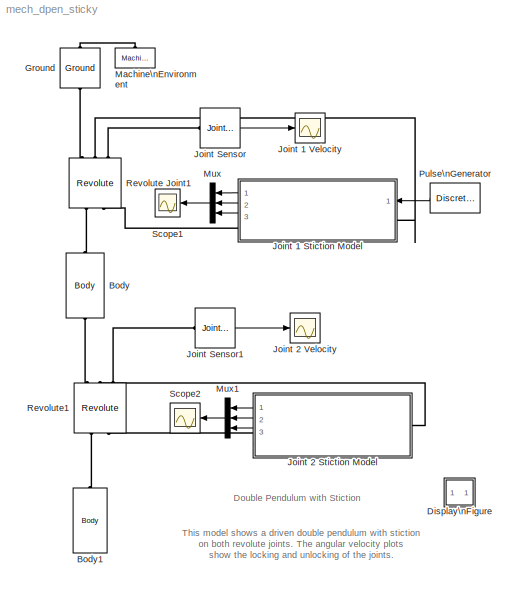
MODEL mech_dpen_sticky
KIND model
BLOCK [Reference] Body  REF=mblibv1/Bodies/Body
  CG = Right$CG$[0 -1 0]$WORLD$WORLD$m$[0 0 0]$Euler X-Y-Z$deg$WORLD$false
  ClassName = Body
  Density = 1
  DensityUnits = kg/m^3
  DensityUse = false
  DialogClass = MechanicalBodyBlock
  Inertia = [0.565529 0 0; 0 0.00085 0; 0 0 0.565529]
  InertiaUnits = kg*m^2
  LConnTagsString = CS1
  LeftPortType = workingframe
  Mass = 1
  MassUnits = kg
  PhysicalDomain = mechanical
  Ports = [0, 0, 0, 0, 0, 1, 1]
  RConnTagsString = CS2
  RightPortType = workingframe
  Shape = Cylinder
  ShapeDims = [1 1]
  ShapeUnits = m
  ShapeUse = false
  SourceBlock = mblibv1/Bodies/Body
  SourceType = msb
  SubClassName = Unknown
  WorkingFrames = Left$CS1$[0 0 0]$WORLD$WORLD$m$[0 0 0]$Euler X-Y-Z$deg$WORLD$true#Right$CS2$[0 -2 0]$WORLD$WORLD$m$[0 0 0]$Euler X-Y-Z$deg$WORLD$true
BLOCK [Reference] Body1  REF=mblibv1/Bodies/Body
  CG = Right$CG$[0 -3 0 ]$WORLD$WORLD$m$[0 0 0]$Euler X-Y-Z$deg$WORLD$false
  ClassName = Body
  Density = 1
  DensityUnits = kg/m^3
  DensityUse = false
  DialogClass = MechanicalBodyBlock
  Inertia = [0.565529 0 0; 0 0.00085 0; 0 0 0.565529]
  InertiaUnits = kg*m^2
  LConnTagsString = CS1
  LeftPortType = workingframe
  Mass = 1
  MassUnits = kg
  PhysicalDomain = mechanical
  Ports = [0, 0, 0, 0, 0, 1]
  RightPortType = workingframe
  Shape = Cylinder
  ShapeDims = [1 1]
  ShapeUnits = m
  ShapeUse = false
  SourceBlock = mblibv1/Bodies/Body
  SourceType = msb
  SubClassName = Unknown
  WorkingFrames = Left$CS1$[0 -2 0]$WORLD$WORLD$m$[0 0 0]$Euler X-Y-Z$deg$WORLD$true#Right$CS2$[0 -4 0]$WORLD$WORLD$m$[0 0 0]$Euler X-Y-Z$deg$WORLD$false
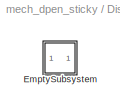
BLOCK [SubSystem] Display\nFigure
  Description = Help callback for sticky double pendulum model: mech_dpen_sticky.  Opens Help browser to Type 19 marker at documentation for this tutorial model.
  MaskDisplay = image(imread('info.bmp'))
  MaskIconFrame = off
  MaskIconOpaque = on
  MaskIconRotate = none
  MaskIconUnits = normalized
  MaskSelfModifiable = on
  MaskType = Help callback
  MinAlgLoopOccurrences = off
  OpenFcn = pmhelpview([docroot '/toolbox/physmod/mech/mech.map'], 'mech_dpen_sticky_help');
  Ports = []
  RTWSystemCode = Auto
  Tag = Help
  TreatAsAtomicUnit = off
BLOCK [SubSystem] Display\nFigure/EmptySubsystem
  MinAlgLoopOccurrences = off
  Ports = []
  RTWSystemCode = Auto
  TreatAsAtomicUnit = off
BLOCK [Reference] Ground  REF=mblibv1/Bodies/Ground
  ClassName = Ground
  CoordPosition = [0 0 0]
  CoordPositionUnits = m
  DialogClass = GroundBlock
  LeftPortType = env
  MachineId = [0 0]
  Opaque = on
  PhysicalDomain = Mechanical
  Ports = [0, 0, 0, 0, 0, 1, 1]
  RightPortType = workingframe
  ShowEnvPort = on
  ShowPortLabels = on
  SourceBlock = mblibv1/Bodies/Ground
  SourceType = msb
  StateVectorMgrId = -1
  UserData = DataTag0
  UserDataPersistent = on
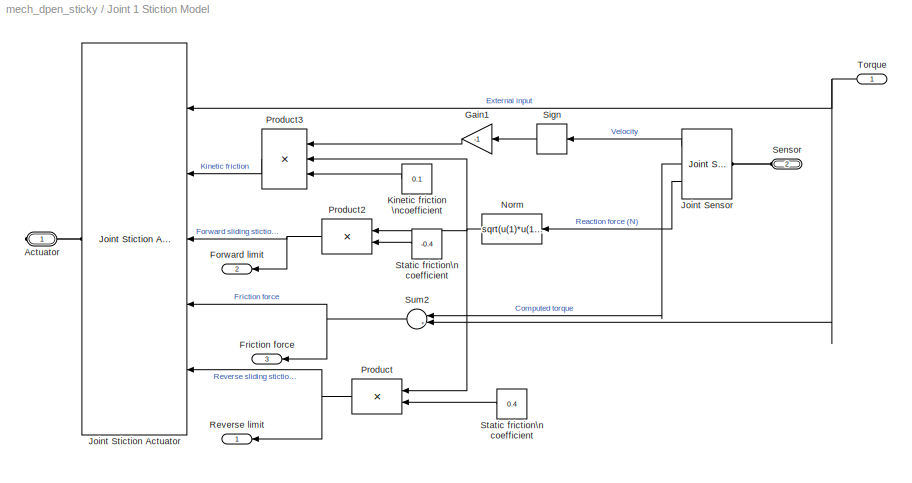
BLOCK [SubSystem] Joint 1 Stiction Model
  MinAlgLoopOccurrences = off
  Ports = [1, 3, 0, 0, 0, 1, 1]
  RTWSystemCode = Auto
  TreatAsAtomicUnit = off
BLOCK [PMIOPort] Joint 1 Stiction Model/Actuator
  Port = 1
  Side = Right
BLOCK [Outport] Joint 1 Stiction Model/Forward limit
  BusOutputAsStruct = off
  IconDisplay = Port number
  Port = 2
BLOCK [Outport] Joint 1 Stiction Model/Friction force
  BusOutputAsStruct = off
  IconDisplay = Port number
  Port = 3
BLOCK [Gain] Joint 1 Stiction Model/Gain1
  Gain = -1
BLOCK [Reference] Joint 1 Stiction Model/Joint Sensor  REF=mblibv1/Sensors & \nActuators/Joint Sensor
  Acceleration = off
  AccelerationUnits = m/s^2
  ActiveIO = off
  Angle = off
  AngleUnits = deg
  ArcAcceleration = off
  ArcAccelerationUnits = deg/s^2
  ArcVelocity = on
  ArcVelocityUnits = deg/s
  ClassName = JointSensor
  CoordPosition = on
  CoordPositionUnits = m
  DialogClass = MechanicalSensorBlock
  Force = off
  ForceUnits = N
  Muxed = off
  Opaque = on
  OutputVector = [ 1 1 3 ]
  PhysicalDomain = Mechanical
  PortType = blob
  Ports = [0, 3, 0, 0, 0, 1]
  Pose = off
  Primitive = R1
  Quaternion = on
  QuaternionDDT = off
  QuaternionDT = off
  QuaternionUnits = off
  ReactionForce = on
  ReactionForceUnits = N
  ReactionMoment = off
  ReactionMomentUnits = N-m
  ReactionReferenceFrame = Absolute (World)
  ReactionSensedSide = Base
  ReferenceFrame = Absolute (INERTIAL)
  ShowPortLabels = on
  SourceBlock = mblibv1/Sensors & \nActuators/Joint Sensor
  SourceType = msb
  Torque = on
  TorqueUnits = N-m
  Velocity = off
  VelocityUnits = m/s
  Width = 1
BLOCK [Reference] Joint 1 Stiction Model/Joint Stiction Actuator  REF=mblibv1/Sensors & \nActuators/Joint Stiction Actuator
  AccelerationUnits = m/s^2
  ActiveIO = off
  ActuationStyle = Force
  AngleUnits = deg
  ArcAccelerationUnits = deg/s^2
  ArcVelocityUnits = deg/s
  ClassName = JointStictionActuator
  CoordPositionUnits = m
  DialogClass = EventActuatorBlock
  ExternalForceUnits = N-m
  ExternalTorqueUnits = N-m
  ForceUnits = N
  FrictionalForceUnits = N-m
  FrictionalTorqueUnits = N-m
  LockingTolerance = 1e-3
  Opaque = on
  PhysicalDomain = Mechanical
  PortType = blob
  Ports = [5, 0, 0, 0, 0, 0, 1]
  Primitive = R1
  ShowPortLabels = on
  SourceBlock = mblibv1/Sensors & \nActuators/Joint Stiction Actuator
  SourceType = msb
  TorqueUnits = N-m
  VelocityUnits = m/s
  Width = 1
BLOCK [Constant] Joint 1 Stiction Model/Kinetic friction \ncoefficient
  Value = 0.1
BLOCK [Fcn] Joint 1 Stiction Model/Norm
  Expr = sqrt(u(1)*u(1) + u(2)*u(2) + u(3)*u(3))
BLOCK [Product] Joint 1 Stiction Model/Product
  Ports = [2, 1]
  RndMeth = Floor
BLOCK [Product] Joint 1 Stiction Model/Product2
  Ports = [2, 1]
  RndMeth = Floor
BLOCK [Product] Joint 1 Stiction Model/Product3
  Inputs = 3
  Ports = [3, 1]
  RndMeth = Floor
BLOCK [Outport] Joint 1 Stiction Model/Reverse limit
  BusOutputAsStruct = off
  IconDisplay = Port number
BLOCK [PMIOPort] Joint 1 Stiction Model/Sensor
  Port = 2
  Side = Left
BLOCK [Signum] Joint 1 Stiction Model/Sign
  ZeroCross = off
BLOCK [Constant] Joint 1 Stiction Model/Static friction\n coefficient
  Value = 0.4
BLOCK [Constant] Joint 1 Stiction Model/Static friction\n coefficient 
  Value = -0.4
BLOCK [Sum] Joint 1 Stiction Model/Sum2
  IconShape = round
  Inputs = |+-
  Ports = [2, 1]
BLOCK [Inport] Joint 1 Stiction Model/Torque
  IconDisplay = Port number
  LatchInput = off
  Port = 1
BLOCK [Scope] Joint 1 Velocity
  DataFormat = StructureWithTime
  NumInputPorts = 1
  Ports = [1]
  SaveName = ScopeData1
  TimeRange = 20
  YMax = 8
  YMin = -6
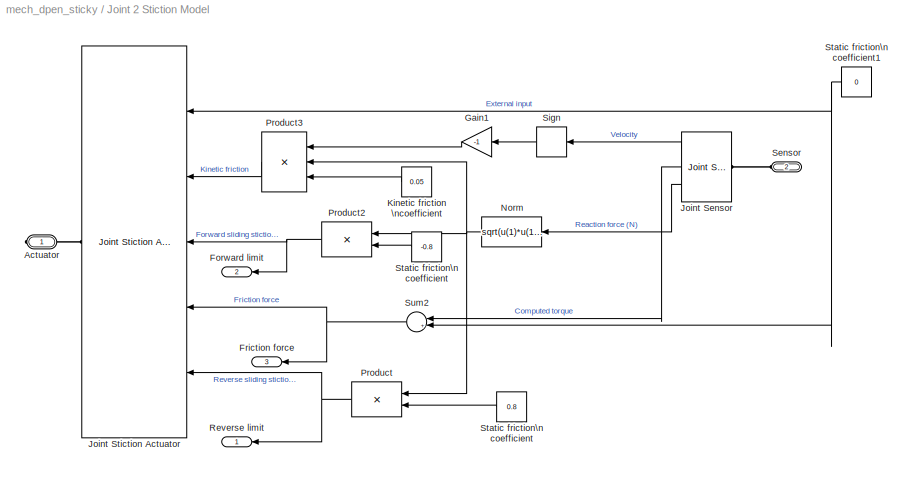
BLOCK [SubSystem] Joint 2 Stiction Model
  MinAlgLoopOccurrences = off
  Ports = [0, 3, 0, 0, 0, 1, 1]
  RTWSystemCode = Auto
  TreatAsAtomicUnit = off
BLOCK [PMIOPort] Joint 2 Stiction Model/Actuator
  Port = 1
  Side = Right
BLOCK [Outport] Joint 2 Stiction Model/Forward limit
  BusOutputAsStruct = off
  IconDisplay = Port number
  Port = 2
BLOCK [Outport] Joint 2 Stiction Model/Friction force
  BusOutputAsStruct = off
  IconDisplay = Port number
  Port = 3
BLOCK [Gain] Joint 2 Stiction Model/Gain1
  Gain = -1
BLOCK [Reference] Joint 2 Stiction Model/Joint Sensor  REF=mblibv1/Sensors & \nActuators/Joint Sensor
  Acceleration = off
  AccelerationUnits = m/s^2
  ActiveIO = off
  Angle = off
  AngleUnits = deg
  ArcAcceleration = off
  ArcAccelerationUnits = deg/s^2
  ArcVelocity = on
  ArcVelocityUnits = deg/s
  ClassName = JointSensor
  CoordPosition = on
  CoordPositionUnits = m
  DialogClass = MechanicalSensorBlock
  Force = off
  ForceUnits = N
  Muxed = off
  Opaque = on
  OutputVector = [ 1 1 3 ]
  PhysicalDomain = Mechanical
  PortType = blob
  Ports = [0, 3, 0, 0, 0, 1]
  Pose = off
  Primitive = R1
  Quaternion = on
  QuaternionDDT = off
  QuaternionDT = off
  QuaternionUnits = off
  ReactionForce = on
  ReactionForceUnits = N
  ReactionMoment = off
  ReactionMomentUnits = N-m
  ReactionReferenceFrame = Absolute (World)
  ReactionSensedSide = Base
  ReferenceFrame = Absolute (INERTIAL)
  ShowPortLabels = on
  SourceBlock = mblibv1/Sensors & \nActuators/Joint Sensor
  SourceType = msb
  Torque = on
  TorqueUnits = N-m
  Velocity = off
  VelocityUnits = m/s
  Width = 1
BLOCK [Reference] Joint 2 Stiction Model/Joint Stiction Actuator  REF=mblibv1/Sensors & \nActuators/Joint Stiction Actuator
  AccelerationUnits = m/s^2
  ActiveIO = off
  ActuationStyle = Force
  AngleUnits = deg
  ArcAccelerationUnits = deg/s^2
  ArcVelocityUnits = deg/s
  ClassName = JointStictionActuator
  CoordPositionUnits = m
  DialogClass = EventActuatorBlock
  ExternalForceUnits = N-m
  ExternalTorqueUnits = N-m
  ForceUnits = N
  FrictionalForceUnits = N-m
  FrictionalTorqueUnits = N-m
  LockingTolerance = 1e-3
  Opaque = on
  PhysicalDomain = Mechanical
  PortType = blob
  Ports = [5, 0, 0, 0, 0, 0, 1]
  Primitive = R1
  ShowPortLabels = on
  SourceBlock = mblibv1/Sensors & \nActuators/Joint Stiction Actuator
  SourceType = msb
  TorqueUnits = N-m
  VelocityUnits = m/s
  Width = 1
BLOCK [Constant] Joint 2 Stiction Model/Kinetic friction \ncoefficient
  Value = 0.05
BLOCK [Fcn] Joint 2 Stiction Model/Norm
  Expr = sqrt(u(1)*u(1) + u(2)*u(2) + u(3)*u(3))
BLOCK [Product] Joint 2 Stiction Model/Product
  Ports = [2, 1]
  RndMeth = Floor
BLOCK [Product] Joint 2 Stiction Model/Product2
  Ports = [2, 1]
  RndMeth = Floor
BLOCK [Product] Joint 2 Stiction Model/Product3
  Inputs = 3
  Ports = [3, 1]
  RndMeth = Floor
BLOCK [Outport] Joint 2 Stiction Model/Reverse limit
  BusOutputAsStruct = off
  IconDisplay = Port number
BLOCK [PMIOPort] Joint 2 Stiction Model/Sensor
  Port = 2
  Side = Left
BLOCK [Signum] Joint 2 Stiction Model/Sign
  ZeroCross = off
BLOCK [Constant] Joint 2 Stiction Model/Static friction\n coefficient
  Value = 0.8
BLOCK [Constant] Joint 2 Stiction Model/Static friction\n coefficient 
  Value = -0.8
BLOCK [Constant] Joint 2 Stiction Model/Static friction\n coefficient1
  Value = 0
BLOCK [Sum] Joint 2 Stiction Model/Sum2
  IconShape = round
  Inputs = |+-
  Ports = [2, 1]
BLOCK [Scope] Joint 2 Velocity
  DataFormat = StructureWithTime
  NumInputPorts = 1
  Ports = [1]
  SaveName = ScopeData3
  TimeRange = 20
  YMax = 10
  YMin = -15
BLOCK [Reference] Joint Sensor  REF=mblibv1/Sensors & \nActuators/Joint Sensor
  Acceleration = off
  AccelerationUnits = m/s^2
  ActiveIO = off
  Angle = off
  AngleUnits = deg
  ArcAcceleration = off
  ArcAccelerationUnits = deg/s^2
  ArcVelocity = on
  ArcVelocityUnits = rad/s
  ClassName = JointSensor
  CoordPosition = on
  CoordPositionUnits = m
  DialogClass = MechanicalSensorBlock
  Force = off
  ForceUnits = N
  Muxed = on
  Opaque = on
  OutputVector = [ 1 ]
  PhysicalDomain = Mechanical
  PortType = blob
  Ports = [0, 1, 0, 0, 0, 1]
  Pose = off
  Primitive = R1
  Quaternion = on
  QuaternionDDT = off
  QuaternionDT = off
  QuaternionUnits = off
  ReactionForce = off
  ReactionForceUnits = N
  ReactionMoment = off
  ReactionMomentUnits = N-m
  ReactionReferenceFrame = Absolute (World)
  ReactionSensedSide = Base
  ReferenceFrame = Absolute (INERTIAL)
  ShowPortLabels = on
  SourceBlock = mblibv1/Sensors & \nActuators/Joint Sensor
  SourceType = msb
  Torque = off
  TorqueUnits = N-m
  Velocity = off
  VelocityUnits = m/s
  Width = 1
BLOCK [Reference] Joint Sensor1  REF=mblibv1/Sensors & \nActuators/Joint Sensor
  Acceleration = off
  AccelerationUnits = m/s^2
  ActiveIO = off
  Angle = off
  AngleUnits = deg
  ArcAcceleration = off
  ArcAccelerationUnits = deg/s^2
  ArcVelocity = on
  ArcVelocityUnits = rad/s
  ClassName = JointSensor
  CoordPosition = on
  CoordPositionUnits = m
  DialogClass = MechanicalSensorBlock
  Force = off
  ForceUnits = N
  Muxed = on
  Opaque = on
  OutputVector = [ 1 ]
  PhysicalDomain = Mechanical
  PortType = blob
  Ports = [0, 1, 0, 0, 0, 1]
  Pose = off
  Primitive = R1
  Quaternion = on
  QuaternionDDT = off
  QuaternionDT = off
  QuaternionUnits = off
  ReactionForce = off
  ReactionForceUnits = N
  ReactionMoment = off
  ReactionMomentUnits = N-m
  ReactionReferenceFrame = Absolute (World)
  ReactionSensedSide = Base
  ReferenceFrame = Absolute (INERTIAL)
  ShowPortLabels = on
  SourceBlock = mblibv1/Sensors & \nActuators/Joint Sensor
  SourceType = msb
  Torque = off
  TorqueUnits = N-m
  Velocity = off
  VelocityUnits = m/s
  Width = 1
BLOCK [Reference] Machine\nEnvironment  REF=mblibv1/Bodies/Machine\nEnvironment
  AnalysisType = Forward dynamics
  AngularAssemblyTolerance = 1e-3
  AngularAssemblyToleranceUnits = rad
  ClassName = Environment
  ConstraintAbsTolerance = 1e-4
  ConstraintRelTolerance = 1e-4
  ConstraintSolverType = Machine precision
  DialogController = MECH.DialogSource
  DialogTemplateClass = MECH.MachineEnvironment
  Dimensionality = 3D Only
  Gravity = [0 -9.81 0]
  GravityAsSignal = off
  GravityUnits = m/s^2
  LinearAssemblyTolerance = 1e-3
  LinearAssemblyToleranceUnits = m
  Opaque = on
  PerturbationSize = 1e-5
  PhysicalDomain = Mechanical
  PortType = env
  Ports = [0, 0, 0, 0, 0, 0, 1]
  ShowPortLabels = on
  SourceBlock = mblibv1/Bodies/Machine\nEnvironment
  SourceType = Mechanical
  StatePerturbationType = Fixed
  SyncWhenCopied = off
  Tag = Factory ground
  UseRobustSingularityHandling = off
  VisualizeMachine = on
BLOCK [Mux] Mux
  DisplayOption = bar
  Inputs = 3
  Ports = [3, 1]
BLOCK [Mux] Mux1
  DisplayOption = bar
  Inputs = 3
  Ports = [3, 1]
BLOCK [DiscretePulseGenerator] Pulse\nGenerator
  Amplitude = 50
  Period = 15
  Ports = [0, 1]
  PulseType = Time based
  PulseWidth = 5
BLOCK [Reference] Revolute Joint1  REF=mblibv1/Joints/Revolute
  ClassName = Joint
  CutJoint = off
  DialogClass = JointBlock
  LConnTagsString = __newl0|SA1|SA2
  LeftPortType = blob
  MarkAsCut = off
  NumSAPorts = 3
  PhysicalDomain = mechanical
  Ports = [0, 0, 0, 0, 0, 3, 2]
  PrimitiveProps = R1$WORLD$[0 0 1 ]$revolute
  Primitives = revolute
  RConnTagsString = __newr0|SA1
  RightPortType = blob
  SourceBlock = mblibv1/Joints/Revolute
  SourceType = msb
  SubClassName = Unknown
BLOCK [Reference] Revolute1  REF=mblibv1/Joints/Revolute
  ClassName = Joint
  CutJoint = off
  DialogClass = JointBlock
  LConnTagsString = __newl0|SA1|SA2
  LeftPortType = blob
  MarkAsCut = off
  NumSAPorts = 3
  PhysicalDomain = mechanical
  Ports = [0, 0, 0, 0, 0, 3, 2]
  PrimitiveProps = R1$WORLD$[0 0 1 ]$revolute
  Primitives = revolute
  RConnTagsString = __newr0|SA1
  RightPortType = blob
  SourceBlock = mblibv1/Joints/Revolute
  SourceType = msb
  SubClassName = Unknown
BLOCK [Scope] Scope1
  DataFormat = StructureWithTime
  NumInputPorts = 1
  Ports = [1]
  TimeRange = 10
  YMax = 80
  YMin = -80
BLOCK [Scope] Scope2
  DataFormat = StructureWithTime
  NumInputPorts = 1
  Ports = [1]
  SaveName = ScopeData2
  TimeRange = 10
  YMax = 15
  YMin = -15
ANNOTATION (root): Double Pendulum with Stiction
ANNOTATION (root): This model shows a driven double pendulum with stiction \non both revolute joints. The angular velocity plots\nshow the locking and unlocking of the joints.
LINE Joint 1 Stiction Model/Gain1:1 -> Joint 1 Stiction Model/Product3:1
LINE Joint 1 Stiction Model/Joint Sensor:1 -> Joint 1 Stiction Model/Sign:1
LINE Joint 1 Stiction Model/Joint Sensor:2 -> Joint 1 Stiction Model/Sum2:1
LINE Joint 1 Stiction Model/Joint Sensor:3 -> Joint 1 Stiction Model/Norm:1
LINE Joint 1 Stiction Model/Kinetic friction \ncoefficient:1 -> Joint 1 Stiction Model/Product3:3
NET Joint 1 Stiction Model/Norm:1 -> Joint 1 Stiction Model/Product2:1, Joint 1 Stiction Model/Product3:2, Joint 1 Stiction Model/Product:1
NET Joint 1 Stiction Model/Product2:1 -> Joint 1 Stiction Model/Forward limit:1, Joint 1 Stiction Model/Joint Stiction Actuator:3
LINE Joint 1 Stiction Model/Product3:1 -> Joint 1 Stiction Model/Joint Stiction Actuator:2
NET Joint 1 Stiction Model/Product:1 -> Joint 1 Stiction Model/Joint Stiction Actuator:5, Joint 1 Stiction Model/Reverse limit:1
LINE Joint 1 Stiction Model/Sign:1 -> Joint 1 Stiction Model/Gain1:1
LINE Joint 1 Stiction Model/Static friction\n coefficient :1 -> Joint 1 Stiction Model/Product2:2
LINE Joint 1 Stiction Model/Static friction\n coefficient:1 -> Joint 1 Stiction Model/Product:2
NET Joint 1 Stiction Model/Sum2:1 -> Joint 1 Stiction Model/Friction force:1, Joint 1 Stiction Model/Joint Stiction Actuator:4
NET Joint 1 Stiction Model/Torque:1 -> Joint 1 Stiction Model/Joint Stiction Actuator:1, Joint 1 Stiction Model/Sum2:2
LINE Joint 1 Stiction Model:1 -> Mux:1
LINE Joint 1 Stiction Model:2 -> Mux:2
LINE Joint 1 Stiction Model:3 -> Mux:3
LINE Joint 2 Stiction Model/Gain1:1 -> Joint 2 Stiction Model/Product3:1
LINE Joint 2 Stiction Model/Joint Sensor:1 -> Joint 2 Stiction Model/Sign:1
LINE Joint 2 Stiction Model/Joint Sensor:2 -> Joint 2 Stiction Model/Sum2:1
LINE Joint 2 Stiction Model/Joint Sensor:3 -> Joint 2 Stiction Model/Norm:1
LINE Joint 2 Stiction Model/Kinetic friction \ncoefficient:1 -> Joint 2 Stiction Model/Product3:3
NET Joint 2 Stiction Model/Norm:1 -> Joint 2 Stiction Model/Product2:1, Joint 2 Stiction Model/Product3:2, Joint 2 Stiction Model/Product:1
NET Joint 2 Stiction Model/Product2:1 -> Joint 2 Stiction Model/Forward limit:1, Joint 2 Stiction Model/Joint Stiction Actuator:3
LINE Joint 2 Stiction Model/Product3:1 -> Joint 2 Stiction Model/Joint Stiction Actuator:2
NET Joint 2 Stiction Model/Product:1 -> Joint 2 Stiction Model/Joint Stiction Actuator:5, Joint 2 Stiction Model/Reverse limit:1
LINE Joint 2 Stiction Model/Sign:1 -> Joint 2 Stiction Model/Gain1:1
LINE Joint 2 Stiction Model/Static friction\n coefficient :1 -> Joint 2 Stiction Model/Product2:2
NET Joint 2 Stiction Model/Static friction\n coefficient1:1 -> Joint 2 Stiction Model/Joint Stiction Actuator:1, Joint 2 Stiction Model/Sum2:2
LINE Joint 2 Stiction Model/Static friction\n coefficient:1 -> Joint 2 Stiction Model/Product:2
NET Joint 2 Stiction Model/Sum2:1 -> Joint 2 Stiction Model/Friction force:1, Joint 2 Stiction Model/Joint Stiction Actuator:4
LINE Joint 2 Stiction Model:1 -> Mux1:1
LINE Joint 2 Stiction Model:2 -> Mux1:2
LINE Joint 2 Stiction Model:3 -> Mux1:3
LINE Joint Sensor1:1 -> Joint 2 Velocity:1
LINE Joint Sensor:1 -> Joint 1 Velocity:1
LINE Mux1:1 -> Scope2:1
LINE Mux:1 -> Scope1:1
LINE Pulse\nGenerator:1 -> Joint 1 Stiction Model:1
PLINE Body1:LConn1 -- Revolute1:RConn1
PLINE Body:LConn1 -- Revolute Joint1:RConn1
PLINE Body:RConn1 -- Revolute1:LConn1
PLINE Ground:LConn1 -- Machine\nEnvironment:RConn1
PLINE Ground:RConn1 -- Revolute Joint1:LConn1
PLINE Joint 1 Stiction Model/Actuator:RConn1 -- Joint 1 Stiction Model/Joint Stiction Actuator:RConn1
PLINE Joint 1 Stiction Model/Joint Sensor:LConn1 -- Joint 1 Stiction Model/Sensor:RConn1
PLINE Joint 1 Stiction Model:LConn1 -- Revolute Joint1:LConn2
PLINE Joint 1 Stiction Model:RConn1 -- Revolute Joint1:RConn2
PLINE Joint 2 Stiction Model/Actuator:RConn1 -- Joint 2 Stiction Model/Joint Stiction Actuator:RConn1
PLINE Joint 2 Stiction Model/Joint Sensor:LConn1 -- Joint 2 Stiction Model/Sensor:RConn1
PLINE Joint 2 Stiction Model:LConn1 -- Revolute1:LConn2
PLINE Joint 2 Stiction Model:RConn1 -- Revolute1:RConn2
PLINE Joint Sensor1:LConn1 -- Revolute1:LConn3
PLINE Joint Sensor:LConn1 -- Revolute Joint1:LConn3
note: NET lines group one-source signal fan-out (src -> all destinations, sorted); 1:1 wires keep LINE
